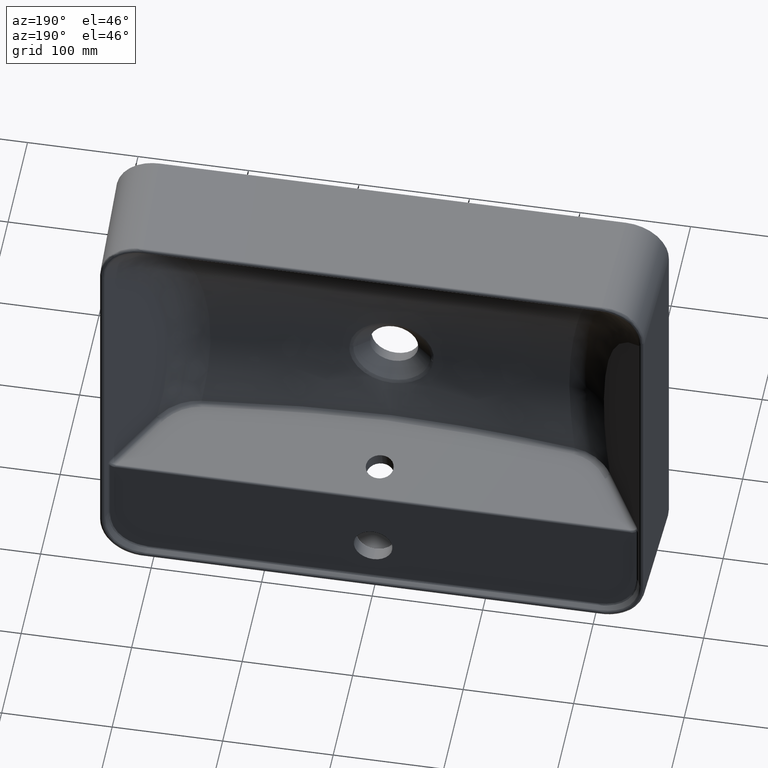
[diagram: clean part render]
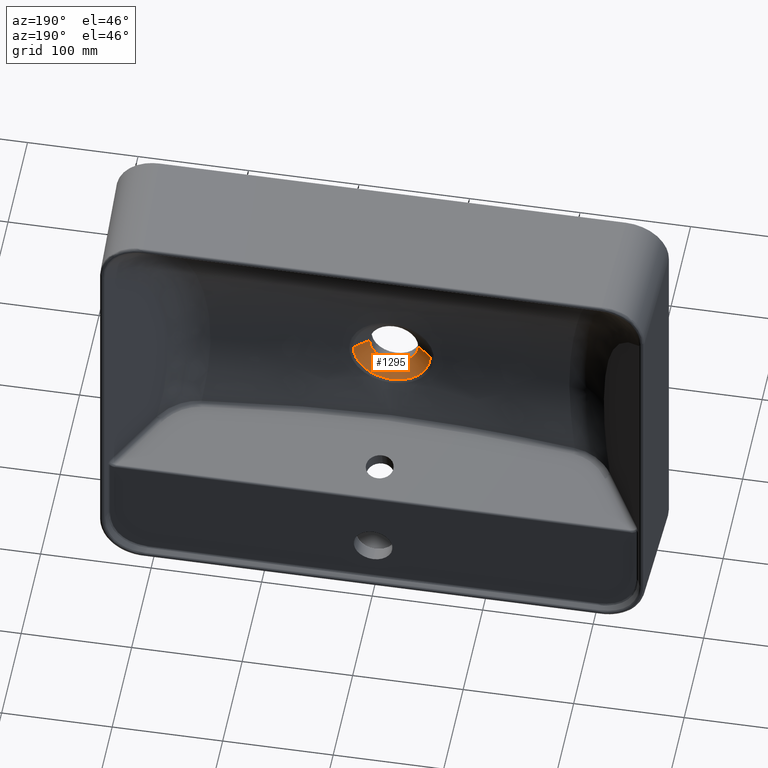
[diagram: same view with one face highlighted and labeled with its STEP entity id]
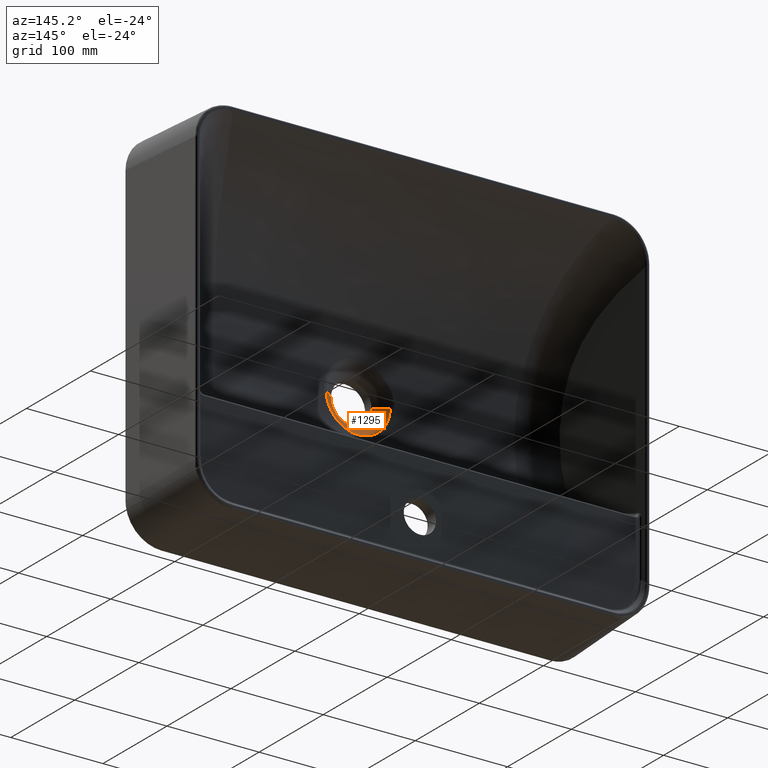
[diagram: same view with one face highlighted and labeled with its STEP entity id]
A machine part, auxiliary view. The second image highlights one B-rep face of the part: STEP entity #1295.
A second angle (auxiliary view) of the same face is appended — the face is thin or edge-on in the first view.
In plain terms, the highlighted face is a freeform B-spline surface patch.
Its self-contained STEP definition (entity closure, byte-faithful):
#25 = CARTESIAN_POINT ( 'NONE',  ( 6.902176000548052137, -24.01799999999590796, -3.396235541480227216 ) ) ;
#116 = CARTESIAN_POINT ( 'NONE',  ( 19.76989422506035510, -11.99911976763036670, -9.758690609449921283 ) ) ;
#195 = CARTESIAN_POINT ( 'NONE',  ( 4.464138481419634358E-12, -11.99912472058425195, -21.99999999999999289 ) ) ;
#515 = CARTESIAN_POINT ( 'NONE',  ( -2.377218207085641133, 0.01799999999997333941, -36.32145155329848052 ) ) ;
#594 = CARTESIAN_POINT ( 'NONE',  ( -32.64692363521497498, 0.01799999999997042160, -16.09588107788295019 ) ) ;
#677 = CARTESIAN_POINT ( 'NONE',  ( 7.676462213049108030, -24.01800000000002910, -1.366055538002189373E-07 ) ) ;
#751 = CARTESIAN_POINT ( 'NONE',  ( 35.15977277473031393, 0.01799999999998028524, -9.417504346386284197 ) ) ;
#814 = CARTESIAN_POINT ( 'NONE',  ( -25.76894647557275420, -1.208683061841676176, -23.50277273108337184 ) ) ;
#834 = CARTESIAN_POINT ( 'NONE',  ( 36.08731734594457663, 0.01799999999998028524, -4.754422983026239002 ) ) ;
#839 = CARTESIAN_POINT ( 'NONE',  ( -21.96496443914950802, -11.99886538341011111, -1.437745108754439949 ) ) ;
#897 = CARTESIAN_POINT ( 'NONE',  ( -29.75896235928912148, -1.229731616904314873, -18.24204202960477872 ) ) ;
#914 = CARTESIAN_POINT ( 'NONE',  ( 19.87104562789611961, -1.180123440103782784, -28.68809961085047888 ) ) ;
#977 = CARTESIAN_POINT ( 'NONE',  ( -0.3385456120957298642, -1.129358837170579610, -34.96981221442531051 ) ) ;
#996 = CARTESIAN_POINT ( 'NONE',  ( 33.97233222719383861, -1.253741862973624999, -7.650738087716235647 ) ) ;
#1073 = CARTESIAN_POINT ( 'NONE',  ( 4.677525633274214556, -24.01799999999591151, -6.106979889609305268 ) ) ;
#1094 = EDGE_CURVE ( 'NONE', #10970, #3465, #4756, .T. ) ;
#1141 = CARTESIAN_POINT ( 'NONE',  ( -0.7173110560618750631, -11.99912471677116876, -22.00000000000014566 ) ) ;
#1158 = CARTESIAN_POINT ( 'NONE',  ( 28.74353166807706117, -1.224267230263658579, -19.72090011215940919 ) ) ;
#1166 = CARTESIAN_POINT ( 'NONE',  ( 4.638735830244077540, -11.99912607289292943, -21.50844480437459438 ) ) ;
#1181 = VERTEX_POINT ( 'NONE', #7177 ) ;
#1220 = CARTESIAN_POINT ( 'NONE',  ( -19.73859672707698820, -11.99886462051512304, -9.742093119185524230 ) ) ;
#1234 = CARTESIAN_POINT ( 'NONE',  ( -7.282076572931354796, -24.01799999999591151, -2.479074441334836010 ) ) ;
#1295 = ADVANCED_FACE ( 'NONE', ( #13943 ), #10739, .T. ) ;
#1319 = CARTESIAN_POINT ( 'NONE',  ( 9.077489472824380456, -11.99912598943270581, -20.05274953368124713 ) ) ;
#1329 = EDGE_CURVE ( 'NONE', #8116, #10970, #7450, .T. ) ;
#1571 = CARTESIAN_POINT ( 'NONE',  ( -4.754423075501272855, 0.01799999999173406209, 36.08731732569965800 ) ) ;
#1733 = CARTESIAN_POINT ( 'NONE',  ( -0.4963643063179348780, -24.01800000000002910, 7.676462194212220425 ) ) ;
#1810 = CARTESIAN_POINT ( 'NONE',  ( 7.625796911343288187, -24.01800000000002555, 1.010777142707481424 ) ) ;
#1887 = CARTESIAN_POINT ( 'NONE',  ( -16.09588096562286808, 0.01799999999584904822, -32.64692365704929955 ) ) ;
#1892 = CARTESIAN_POINT ( 'NONE',  ( -22.00000000008291323, -11.99912472408364295, -0.7177602226933168517 ) ) ;
#1952 = CARTESIAN_POINT ( 'NONE',  ( -2.540803745624446996, -1.130446237004422150, -34.86457138928228261 ) ) ;
#1968 = CARTESIAN_POINT ( 'NONE',  ( -28.87947149523986567, 0.01799999999996639705, -22.15570212078812418 ) ) ;
#2043 = B_SPLINE_CURVE_WITH_KNOTS ( 'NONE', 1,
 ( #9511, #13140 ),
 .UNSPECIFIED., .F., .F.,
 ( 2, 2 ),
 ( 0.05312276944638082143, 0.4999635848650241798 ),
 .UNSPECIFIED. ) ;
#2049 = CARTESIAN_POINT ( 'NONE',  ( 11.70335447117046890, 0.01799999999997333941, -34.46636773270523690 ) ) ;
#2054 = CARTESIAN_POINT ( 'NONE',  ( -21.82244331986893471, -11.99886655447078709, -2.882315278028666050 ) ) ;
#2111 = CARTESIAN_POINT ( 'NONE',  ( 7.312219898592987377, -1.137129372618136847, -34.17572058844619676 ) ) ;
#2131 = CARTESIAN_POINT ( 'NONE',  ( -7.432125312429802122, -24.01799999999591151, 1.984429963635055305 ) ) ;
#2213 = CARTESIAN_POINT ( 'NONE',  ( 0.4963641532308845639, -24.01800000000002910, -7.676462207861279197 ) ) ;
#2288 = CARTESIAN_POINT ( 'NONE',  ( -0.4963639091779875612, -24.01800000000002910, -7.676462205767619729 ) ) ;
#2308 = EDGE_CURVE ( 'NONE', #3465, #4850, #11481, .T. ) ;
#2364 = CARTESIAN_POINT ( 'NONE',  ( -5.779060998788246195, -24.01799999999179391, 5.077095951414243302 ) ) ;
#2422 = EDGE_CURVE ( 'NONE', #14446, #1181, #8383, .T. ) ;
#2451 = CARTESIAN_POINT ( 'NONE',  ( 26.01257775909217429, -1.209940983770942724, -23.21051459442846365 ) ) ;
#2459 = CARTESIAN_POINT ( 'NONE',  ( 17.89556368240520356, -11.99912621183263539, -12.81662637896499568 ) ) ;
#2536 = CARTESIAN_POINT ( 'NONE',  ( 21.99999999548976604, -11.99912473538034163, -1.453920294662173651 ) ) ;
#2547 = CARTESIAN_POINT ( 'NONE',  ( -34.67129726651376842, -1.258048041902464664, -3.059596463839940217 ) ) ;
#2626 = CARTESIAN_POINT ( 'NONE',  ( -18.20253262354665935, 0.01799999999996639705, 31.52089492273735161 ) ) ;
#2698 = CARTESIAN_POINT ( 'NONE',  ( 7.753204033682934870, -11.99912345409519965, -20.60100498038563543 ) ) ;
#2784 = CARTESIAN_POINT ( 'NONE',  ( 36.08731730060915055, 0.01799999999998028177, 4.754423074994080345 ) ) ;
#2945 = CARTESIAN_POINT ( 'NONE',  ( 2.479074434664009452, -24.01800000000415025, 7.282076574234134014 ) ) ;
#3026 = CARTESIAN_POINT ( 'NONE',  ( -32.64692367555260688, 0.01799999999584502713, 16.09588099283110907 ) ) ;
#3103 = CARTESIAN_POINT ( 'NONE',  ( -35.15977277298687653, 0.01800000000408777043, 9.417504249986540898 ) ) ;
#3183 = CARTESIAN_POINT ( 'NONE',  ( -2.479074342321342161, -24.01800000000002910, 7.282076570865854137 ) ) ;
#3249 = CARTESIAN_POINT ( 'NONE',  ( 4.044023531538344152, -1.131780405320581551, -34.73379536686217506 ) ) ;
#3266 = CARTESIAN_POINT ( 'NONE',  ( 31.52089497756543324, 0.01800000000410165862, -18.20253252831581392 ) ) ;
#3271 = CARTESIAN_POINT ( 'NONE',  ( -9.739897327673507021, -11.99886483594560360, -19.73971644312476315 ) ) ;
#3344 = CARTESIAN_POINT ( 'NONE',  ( 7.676462215287011226, -24.01800000000415025, -0.4963615412216475509 ) ) ;
#3419 = CARTESIAN_POINT ( 'NONE',  ( 18.48643545820720746, -1.173965344629448682, -29.60795934241371441 ) ) ;
#3444 = ORIENTED_EDGE ( 'NONE', *, *, #2422, .F. ) ;
#3465 = VERTEX_POINT ( 'NONE', #5224 ) ;
#3484 = CARTESIAN_POINT ( 'NONE',  ( -32.61440830439329375, -1.245745619016632277, -12.23234643114741615 ) ) ;
#3502 = CARTESIAN_POINT ( 'NONE',  ( -5.077096140130652913, -24.01800000000827850, 5.779060808761236068 ) ) ;
#3568 = CARTESIAN_POINT ( 'NONE',  ( -21.71568414695320826, -11.99912808562398325, -3.597948957549455429 ) ) ;
#3582 = CARTESIAN_POINT ( 'NONE',  ( 23.75447735907199842, -1.198464099931358939, -25.62464196415902151 ) ) ;
#3663 = CARTESIAN_POINT ( 'NONE',  ( 7.676462213049108030, -24.01800000000002910, -1.366055538002189373E-07 ) ) ;
#3829 = CARTESIAN_POINT ( 'NONE',  ( -34.79974762094465746, -1.258861218431040152, -4.372572265271636421E-08 ) ) ;
#3909 = CARTESIAN_POINT ( 'NONE',  ( 7.077780348605588578, -11.99886642309088280, -20.84282368896092663 ) ) ;
#3993 = CARTESIAN_POINT ( 'NONE',  ( 20.84458744201863922, -11.99886518852059503, -7.072831119900112817 ) ) ;
#4233 = CARTESIAN_POINT ( 'NONE',  ( 4.754423029342873974, 0.01799999999997333941, -36.08731733128058750 ) ) ;
#4318 = CARTESIAN_POINT ( 'NONE',  ( 4.677525493186544203, -24.01800000000415025, 6.106979945658167708 ) ) ;
#4323 = CARTESIAN_POINT ( 'NONE',  ( -11.63026297487220795, -11.99912607798362174, -18.68824894018827720 ) ) ;
#4398 = CARTESIAN_POINT ( 'NONE',  ( 36.32145157601038932, 0.01799999999585891186, -2.377218280102861847 ) ) ;
#4461 = CARTESIAN_POINT ( 'NONE',  ( -16.23394231345058358, -1.164534341268895323, -30.91302420753029878 ) ) ;
#4480 = CARTESIAN_POINT ( 'NONE',  ( 27.36409185152621149, 0.01799999999998430633, -24.00219754453982546 ) ) ;
#4486 = CARTESIAN_POINT ( 'NONE',  ( -9.080707500437727120, -11.99912609740258240, -20.05143056899227716 ) ) ;
#4544 = CARTESIAN_POINT ( 'NONE',  ( -24.21616857208341145, -1.200850125683026848, -25.09425449913790729 ) ) ;
#4564 = CARTESIAN_POINT ( 'NONE',  ( 6.106979658831778401, -24.01799999999590796, 4.677525913091272969 ) ) ;
#4621 = CARTESIAN_POINT ( 'NONE',  ( -31.98764558472488773, -1.242164242015588282, -13.76602999316935261 ) ) ;
#4639 = CARTESIAN_POINT ( 'NONE',  ( 27.08559917862710265, -1.215499736373141015, -21.93829748016575110 ) ) ;
#4696 = CARTESIAN_POINT ( 'NONE',  ( -16.72068360186358049, -1.166508479032545953, -30.64974187560541807 ) ) ;
#4716 = CARTESIAN_POINT ( 'NONE',  ( -1.010777121536023282, -24.01800000000002555, -7.625796927760312371 ) ) ;
#4756 = B_SPLINE_CURVE_WITH_KNOTS ( 'NONE', 3,
 ( #10799, #2547, #5884, #4903, #6207, #11125 ),
 .UNSPECIFIED., .F., .F.,
 ( 4, 2, 4 ),
 ( 0.01298751018278587396, 0.01484073408210249446, 0.01669395798141911497 ),
 .UNSPECIFIED. ) ;
#4803 = CARTESIAN_POINT ( 'NONE',  ( -7.625797006333704608, -24.01800000000415380, 1.010776624565480786 ) ) ;
#4850 = VERTEX_POINT ( 'NONE', #8999 ) ;
#4882 = CARTESIAN_POINT ( 'NONE',  ( -5.779060808505543712, -24.01799999999591151, -5.077096155932063759 ) ) ;
#4890 = CARTESIAN_POINT ( 'NONE',  ( 16.54301444874217708, -11.99886670576200132, -14.52084541244793314 ) ) ;
#4903 = CARTESIAN_POINT ( 'NONE',  ( -34.78377208352865324, -1.258757281638698267, -1.221591647166394790 ) ) ;
#4963 = CARTESIAN_POINT ( 'NONE',  ( 6.106980040063034743, -24.01800000000415025, -4.677525403069398457 ) ) ;
#5067 = CARTESIAN_POINT ( 'NONE',  ( 4.754422878880236070, 0.01799999999585196603, 36.08731733528973251 ) ) ;
#5145 = CARTESIAN_POINT ( 'NONE',  ( -22.15570210348808189, 0.01799999999996639705, 28.87947151346682517 ) ) ;
#5220 = CARTESIAN_POINT ( 'NONE',  ( 2.377218143424980390, 0.01799999999997333941, 36.32145153736618681 ) ) ;
#5224 = CARTESIAN_POINT ( 'NONE',  ( -34.79974762094465746, -1.258861218431040152, -4.372572265271636421E-08 ) ) ;
#5323 = CARTESIAN_POINT ( 'NONE',  ( -32.98157497877745925, -1.247874335370031895, -11.19568131270514399 ) ) ;
#5454 = CARTESIAN_POINT ( 'NONE',  ( -36.08731728955162765, 0.01799999999996292760, -4.754423091150495218 ) ) ;
#5540 = CARTESIAN_POINT ( 'NONE',  ( 32.64692364616725939, 0.01800000000409818571, -16.09588106221808346 ) ) ;
#5608 = CARTESIAN_POINT ( 'NONE',  ( 15.60231334391052549, -1.161953987185203818, -31.25441087673310747 ) ) ;
#5624 = CARTESIAN_POINT ( 'NONE',  ( 7.676462210811204834, -24.01799999999590796, 0.4963612680105399244 ) ) ;
#5687 = CARTESIAN_POINT ( 'NONE',  ( -6.947091158657462628, -1.135810531402799972, -34.32082897917143072 ) ) ;
#5690 = CARTESIAN_POINT ( 'NONE',  ( 22.00000000000000000, -11.99912472581574541, -6.824667458764366312E-08 ) ) ;
#5703 = CARTESIAN_POINT ( 'NONE',  ( -36.08731733700267341, 0.01799999999584502366, 4.754422910068118568 ) ) ;
#5768 = CARTESIAN_POINT ( 'NONE',  ( -26.49686459209398492, -1.212436201062164542, -22.67141378628070925 ) ) ;
#5786 = CARTESIAN_POINT ( 'NONE',  ( 28.87947155947104250, 0.01799999999585891186, -22.15570201143431461 ) ) ;
#5867 = CARTESIAN_POINT ( 'NONE',  ( -3.852102470581216576, -24.01800000000003266, -6.658510018269628183 ) ) ;
#5884 = CARTESIAN_POINT ( 'NONE',  ( -34.71954639764720696, -1.258350671028036993, -2.446245462201866783 ) ) ;
#5923 = CARTESIAN_POINT ( 'NONE',  ( -12.20367849933085758, -1.149832151219424725, -32.74682074937270215 ) ) ;
#5942 = CARTESIAN_POINT ( 'NONE',  ( 33.09912991518508818, -1.248519535046103135, -10.84138609061559144 ) ) ;
#6022 = CARTESIAN_POINT ( 'NONE',  ( 5.077096116274980808, -24.01799999999590440, -5.779060857913305149 ) ) ;
#6109 = CARTESIAN_POINT ( 'NONE',  ( -6.902176073356669939, -24.01800000000415380, -3.396235376227550784 ) ) ;
#6116 = CARTESIAN_POINT ( 'NONE',  ( 2.863215270756345188, -11.99911926012184793, -21.86090314701574400 ) ) ;
#6188 = CARTESIAN_POINT ( 'NONE',  ( 3.852102331007629221, -24.01800000000415380, -6.658510104983277778 ) ) ;
#6207 = CARTESIAN_POINT ( 'NONE',  ( -34.79974761861765842, -1.258861218532614012, -0.6102888984967734798 ) ) ;
#6283 = CARTESIAN_POINT ( 'NONE',  ( 9.417504265951244236, 0.01800000000409471279, 35.15977279112827603 ) ) ;
#6356 = CARTESIAN_POINT ( 'NONE',  ( 17.46368770093785727, -11.99886524325502535, -13.39947351307559487 ) ) ;
#6435 = CARTESIAN_POINT ( 'NONE',  ( 6.044449572632275114, -11.99886576514744441, -21.15642214227064954 ) ) ;
#6445 = CARTESIAN_POINT ( 'NONE',  ( 24.00219748554036414, 0.01799999999997681233, 27.36409190781639111 ) ) ;
#6549 = CARTESIAN_POINT ( 'NONE',  ( -34.37329166931944258, -1.256202982001949353, -5.887824437222342944 ) ) ;
#6680 = CARTESIAN_POINT ( 'NONE',  ( 34.46636771701324164, 0.01799999999585543894, -11.70335447360829306 ) ) ;
#6742 = EDGE_CURVE ( 'NONE', #8116, #14446, #2043, .T. ) ;
#6760 = CARTESIAN_POINT ( 'NONE',  ( -27.36409180016189779, 0.01800000000821316837, -24.00219759586752133 ) ) ;
#6841 = CARTESIAN_POINT ( 'NONE',  ( -4.754422988884425827, 0.01799999999997680886, -36.08731733038916900 ) ) ;
#6904 = CARTESIAN_POINT ( 'NONE',  ( -3.644223846819334423, -1.131446391280959807, -34.76534129946816876 ) ) ;
#6920 = CARTESIAN_POINT ( 'NONE',  ( -36.32145157385121337, 0.01800000000408777043, 2.377218214009109598 ) ) ;
#6978 = CARTESIAN_POINT ( 'NONE',  ( -24.61204138210511871, -1.202833784379477411, -24.70285643074873150 ) ) ;
#6996 = CARTESIAN_POINT ( 'NONE',  ( 22.15570208393180707, 0.01800000000409471626, -28.87947152586863453 ) ) ;
#7001 = CARTESIAN_POINT ( 'NONE',  ( -17.46518558335575833, -11.99886682626737766, -13.39713968541036593 ) ) ;
#7057 = CARTESIAN_POINT ( 'NONE',  ( -1.989752212185485813, -1.130074118369045477, -34.90078927921678797 ) ) ;
#7077 = CARTESIAN_POINT ( 'NONE',  ( 31.51260056752650129, -1.239394620857739993, -14.98314262036965516 ) ) ;
#7138 = CARTESIAN_POINT ( 'NONE',  ( 12.61488803936740588, -1.150869278748960722, -32.64495809031083695 ) ) ;
#7158 = CARTESIAN_POINT ( 'NONE',  ( 1.984429996253046058, -24.01800000000002910, -7.432125330520213957 ) ) ;
#7177 = CARTESIAN_POINT ( 'NONE',  ( 4.464138481419634358E-12, -11.99912472058425195, -21.99999999999999289 ) ) ;
#7237 = CARTESIAN_POINT ( 'NONE',  ( -1.984429968377550146, -24.01800000000002555, -7.432125337683116229 ) ) ;
#7300 = CARTESIAN_POINT ( 'NONE',  ( -3.949521592301983741, -11.99912634210857831, -21.64556660106333652 ) ) ;
#7315 = CARTESIAN_POINT ( 'NONE',  ( 3.396235373018243298, -24.01800000000002910, -6.902176071264161550 ) ) ;
#7382 = CARTESIAN_POINT ( 'NONE',  ( -3.594431952266634145, -11.99904583238606648, -21.70738992245525623 ) ) ;
#7395 = CARTESIAN_POINT ( 'NONE',  ( -6.658510156599070307, -24.01800000000003266, 3.852102267579266659 ) ) ;
#7401 = CARTESIAN_POINT ( 'NONE',  ( 10.67941892805080073, -11.99886517329993829, -19.23745587158044046 ) ) ;
#7450 = B_SPLINE_CURVE_WITH_KNOTS ( 'NONE', 3,
 ( #8274, #14659, #9651, #996, #8435, #5942, #13202, #7077, #13360, #1158, #8596, #4639, #13524, #2451, #10940, #3582, #14499, #914, #9574, #3419, #8514, #13444, #5608, #7138, #9557, #9319, #2111, #15771, #15459, #3249, #13026, #14245, #977, #7057, #1952, #6904, #8177, #5687, #13106, #5923, #15534, #11889, #14561, #4461, #4696, #14482, #11969, #10840, #9400, #4544, #6978, #814, #5768, #10683, #897, #10764, #9480, #15694, #4621, #3484, #5323, #10094, #6549, #11460 ),
 .UNSPECIFIED., .F., .F.,
 ( 4, 2, 2, 2, 2, 2, 2, 2, 2, 2, 2, 2, 2, 2, 2, 2, 2, 2, 2, 2, 2, 2, 2, 2, 2, 2, 2, 2, 2, 2, 2, 4 ),
 ( 0.1272459322955794003, 0.1339235697805204739, 0.1372623885229909968, 0.1406012072654615475, 0.1472788447504026210, 0.1506176634928731439, 0.1522870728641084193, 0.1539564822353436946, 0.1606341197202847404, 0.1623035290915200157, 0.1639729384627552633, 0.1673117572052257862, 0.1739893946901668320, 0.1756588040614020796, 0.1773282134326373272, 0.1806670321751078501, 0.1840058509175783730, 0.1856752602888136205, 0.1873446696600488681, 0.1940223071449899139, 0.1973611258874604091, 0.1990305352586956844, 0.2006999446299309042, 0.2073775821148719500, 0.2090469914861072254, 0.2107164008573425007, 0.2140552195998130514, 0.2207328570847540972, 0.2224022664559893725, 0.2240716758272246478, 0.2274104945696951985, 0.2340881320546362721 ),
 .UNSPECIFIED. ) ;
#7479 = CARTESIAN_POINT ( 'NONE',  ( 20.59862134025631519, -11.99912718030379644, -7.759960624964350018 ) ) ;
#7490 = CARTESIAN_POINT ( 'NONE',  ( 16.09588096804450785, 0.01799999999996931485, 32.64692368312633164 ) ) ;
#7643 = CARTESIAN_POINT ( 'NONE',  ( 22.15570192458887533, 0.01799999999998083688, 28.87947158389330937 ) ) ;
#7723 = CARTESIAN_POINT ( 'NONE',  ( -27.36409192846791427, 0.01800000000408374934, 24.00219745924058756 ) ) ;
#7794 = CARTESIAN_POINT ( 'NONE',  ( 36.32145156464365243, 0.01799999999998028524, 1.022480711210249638E-10 ) ) ;
#7875 = CARTESIAN_POINT ( 'NONE',  ( 1.984429968504492159, -24.01799999999590796, 7.432125321215425018 ) ) ;
#7956 = CARTESIAN_POINT ( 'NONE',  ( -31.52089491802205501, 0.01799999999996639705, -18.20253260938764583 ) ) ;
#8032 = CARTESIAN_POINT ( 'NONE',  ( 36.32145156464365243, 0.01799999999998028524, 1.022480711210249638E-10 ) ) ;
#8111 = CARTESIAN_POINT ( 'NONE',  ( -3.852102491535129847, -24.01800000000003266, 6.658510011875900858 ) ) ;
#8116 = VERTEX_POINT ( 'NONE', #9334 ) ;
#8177 = CARTESIAN_POINT ( 'NONE',  ( -4.198095398854355231, -1.132076755765846654, -34.70209288565067141 ) ) ;
#8195 = CARTESIAN_POINT ( 'NONE',  ( 2.377218327721226654, 0.01799999999997333941, -36.32145156351950277 ) ) ;
#8202 = CARTESIAN_POINT ( 'NONE',  ( -17.89195597651429992, -11.99912345790258072, -12.82151601276071240 ) ) ;
#8274 = CARTESIAN_POINT ( 'NONE',  ( 34.79975039952486071, -1.258858886413233513, -7.602937045054908434E-09 ) ) ;
#8354 = CARTESIAN_POINT ( 'NONE',  ( -2.479074093528640610, -24.01799999999179036, -7.282076697523116593 ) ) ;
#8383 = B_SPLINE_CURVE_WITH_KNOTS ( 'NONE', 3,
 ( #14830, #2536, #12236, #15062, #10063, #3993, #7479, #116, #12470, #2459, #6356, #4890, #9821, #13774, #14747, #12391, #8688, #8604, #7401, #11352, #1319, #2698, #3909, #6435, #8928, #12317, #1166, #6116, #11033, #195 ),
 .UNSPECIFIED., .F., .F.,
 ( 4, 2, 2, 2, 2, 2, 2, 2, 2, 2, 2, 2, 2, 2, 4 ),
 ( 1.413572050719166067E-19, 0.004299851908196043043, 0.006449777862294067167, 0.008599703816392091291, 0.01289955572458813433, 0.01504948167868615412, 0.01719940763278417217, 0.02149925954098021869, 0.02257422251802923205, 0.02364918549507824888, 0.02579911144917626520, 0.02794903740327428152, 0.02902400038032329141, 0.03009896335737229783, 0.03439881526556831659 ),
 .UNSPECIFIED. ) ;
#8435 = CARTESIAN_POINT ( 'NONE',  ( 33.71566791314567979, -1.252180368364655294, -8.720141150036299749 ) ) ;
#8499 = CARTESIAN_POINT ( 'NONE',  ( -13.41778454890680194, -11.99912200801158413, -17.49336214281413504 ) ) ;
#8514 = CARTESIAN_POINT ( 'NONE',  ( 18.01235378146716570, -1.171913990207318790, -29.90152414735901587 ) ) ;
#8581 = CARTESIAN_POINT ( 'NONE',  ( 4.464138481419634358E-12, -11.99912472058425195, -21.99999999999999289 ) ) ;
#8596 = CARTESIAN_POINT ( 'NONE',  ( 28.10834188516769672, -1.220872042768814225, -20.62336365546779149 ) ) ;
#8604 = CARTESIAN_POINT ( 'NONE',  ( 10.99373128430685220, -11.99891295897401733, -19.05962186206129161 ) ) ;
#8688 = CARTESIAN_POINT ( 'NONE',  ( 11.61547568311872425, -11.99904289133732149, -18.68721589031360608 ) ) ;
#8781 = CARTESIAN_POINT ( 'NONE',  ( -11.70335455649809120, 0.01799999999996986649, 34.46636764685394638 ) ) ;
#8928 = CARTESIAN_POINT ( 'NONE',  ( 5.696634138511662115, -11.99891409338401260, -21.25275217480442080 ) ) ;
#8937 = CARTESIAN_POINT ( 'NONE',  ( 35.15977275304571492, 0.01799999999998028177, 9.417504480454615745 ) ) ;
#8999 = CARTESIAN_POINT ( 'NONE',  ( -22.00000000000000000, -11.99912472632792593, 2.541558001382948628E-09 ) ) ;
#9024 = ORIENTED_EDGE ( 'NONE', *, *, #1094, .T. ) ;
#9172 = CARTESIAN_POINT ( 'NONE',  ( 16.09588108598898515, 0.01799999999997333941, -32.64692362831191730 ) ) ;
#9253 = CARTESIAN_POINT ( 'NONE',  ( -28.87947159068615122, 0.01799999999996639705, 22.15570198794720724 ) ) ;
#9258 = CARTESIAN_POINT ( 'NONE',  ( -16.55399138407068449, -11.99886513805905608, -14.50797809715635189 ) ) ;
#9319 = CARTESIAN_POINT ( 'NONE',  ( 7.856330464019964488, -1.138267311036479823, -34.05331264241161904 ) ) ;
#9334 = CARTESIAN_POINT ( 'NONE',  ( 34.79975039952486071, -1.258858886413233513, -7.602937045054908434E-09 ) ) ;
#9336 = CARTESIAN_POINT ( 'NONE',  ( 1.010776943035361031, -24.01800000000415025, 7.625796946632295459 ) ) ;
#9400 = CARTESIAN_POINT ( 'NONE',  ( -23.41068667793448910, -1.196861997544732326, -25.85363261511835731 ) ) ;
#9418 = CARTESIAN_POINT ( 'NONE',  ( -35.15977274949931086, 0.01799999999996292760, -9.417504455176359812 ) ) ;
#9424 = CARTESIAN_POINT ( 'NONE',  ( -11.01405288481488043, -11.99886711271619788, -19.05813853079812148 ) ) ;
#9480 = CARTESIAN_POINT ( 'NONE',  ( -31.29695175118270356, -1.238263551631445525, -15.28178715473555016 ) ) ;
#9497 = CARTESIAN_POINT ( 'NONE',  ( 3.852101913952613366, -24.01799999999590796, 6.658510351887919398 ) ) ;
#9511 = CARTESIAN_POINT ( 'NONE',  ( 34.79975039952486071, -1.258858886413233513, -7.602937045054908434E-09 ) ) ;
#9557 = CARTESIAN_POINT ( 'NONE',  ( 10.54475461786854495, -1.144415076259005959, -33.38024836438523124 ) ) ;
#9574 = CARTESIAN_POINT ( 'NONE',  ( 19.41545903901064563, -1.178069028122194162, -29.00140635186026117 ) ) ;
#9651 = CARTESIAN_POINT ( 'NONE',  ( 34.58964020359082525, -1.257511493702569538, -4.416549268944454099 ) ) ;
#9733 = CARTESIAN_POINT ( 'NONE',  ( -7.676462211870816787, -24.01800000000415380, -0.4963637730134041193 ) ) ;
#9756 = CARTESIAN_POINT ( 'NONE',  ( -34.60655924417644513, -1.257647225507813493, -3.673993936369516877 ) ) ;
#9814 = CARTESIAN_POINT ( 'NONE',  ( 7.282076556023842073, -24.01800000000415025, -2.479074460346130770 ) ) ;
#9821 = CARTESIAN_POINT ( 'NONE',  ( 16.05858748738258157, -11.99912718918906940, -15.05446961712178044 ) ) ;
#10063 = CARTESIAN_POINT ( 'NONE',  ( 21.26364292738832873, -11.99886676512863204, -5.690277245892065849 ) ) ;
#10073 = CARTESIAN_POINT ( 'NONE',  ( -24.00219760810762182, 0.01799999999584905169, 27.36409177339405829 ) ) ;
#10094 = CARTESIAN_POINT ( 'NONE',  ( -33.93473828262727210, -1.253500826445441030, -8.044092040971976942 ) ) ;
#10148 = CARTESIAN_POINT ( 'NONE',  ( 34.46636769703391678, 0.01799999999997681233, 11.70335454902047978 ) ) ;
#10300 = CARTESIAN_POINT ( 'NONE',  ( 36.32145155327690844, 0.01800000000410165862, 2.377218280307357823 ) ) ;
#10384 = CARTESIAN_POINT ( 'NONE',  ( -31.52089498747352181, 0.01799999999996639705, 18.20253251444679776 ) ) ;
#10419 = ORIENTED_EDGE ( 'NONE', *, *, #1329, .T. ) ;
#10466 = CARTESIAN_POINT ( 'NONE',  ( -22.15570203654210601, 0.01799999999996639705, -28.87947157041915958 ) ) ;
#10471 = CARTESIAN_POINT ( 'NONE',  ( -7.083584778521860414, -11.99912192890861640, -20.87820138259009894 ) ) ;
#10547 = CARTESIAN_POINT ( 'NONE',  ( 5.779060643019575672, -24.01800000000002910, 5.077096328414093307 ) ) ;
#10624 = CARTESIAN_POINT ( 'NONE',  ( -18.20253251910149217, 0.01799999999996639705, -31.52089497192253020 ) ) ;
#10629 = CARTESIAN_POINT ( 'NONE',  ( -1.436465697537239183, -11.99886578808596838, -21.96500705558200295 ) ) ;
#10683 = CARTESIAN_POINT ( 'NONE',  ( -28.55458724958359795, -1.223214446752123985, -20.08633301946711569 ) ) ;
#10700 = CARTESIAN_POINT ( 'NONE',  ( 7.432125283169705554, -24.01800000000002555, 1.984430182323113856 ) ) ;
#10739 = B_SPLINE_SURFACE_WITH_KNOTS ( 'NONE', 1, 3, ( 
 ( #7794, #10300, #2784, #8937, #10148, #15232, #12714, #12640, #11361, #6445, #7643, #12563, #7490, #12403, #6283, #5067, #5220, #15073, #1571, #11286, #8781, #13704, #2626, #5145, #10073, #7723, #9253, #10384, #3026, #11908, #3103, #5703, #6920, #12959, #5454, #9418, #15394, #594, #7956, #1968, #6760, #14183, #10466, #10624, #1887, #15311, #11753, #6841, #515, #8195, #4233, #15552, #2049, #9172, #11828, #6996, #14344, #4480, #5786, #3266, #5540, #6680, #751, #834, #4398, #8032 ),
 ( #677, #5624, #1810, #10700, #11672, #15635, #13123, #4564, #10547, #15475, #4318, #9497, #14103, #2945, #7875, #9336, #12798, #1733, #11594, #14261, #3183, #12878, #8111, #13043, #3502, #2364, #14740, #7395, #15868, #15788, #2131, #4803, #11026, #9733, #10859, #10782, #1234, #6109, #11987, #15948, #4882, #14580, #13282, #5867, #12227, #8354, #7237, #4716, #2288, #2213, #12310, #7158, #11104, #7315, #6188, #1073, #6022, #12068, #4963, #15711, #25, #9814, #12143, #14422, #3344, #3663 ) ),
 .UNSPECIFIED., .F., .T., .F.,
 ( 2, 2 ),
 ( 4, 2, 2, 2, 2, 2, 2, 2, 2, 2, 2, 2, 2, 2, 2, 2, 2, 2, 2, 2, 2, 2, 2, 2, 2, 2, 2, 2, 2, 2, 2, 2, 4 ),
 ( 0.000000000000000000, 1.000000000000000000 ),
 ( 0.000000000000000000, 0.03125000000000000000, 0.06250000000000000000, 0.09375000000000000000, 0.1250000000000000000, 0.1562500000000000000, 0.1875000000000000000, 0.2187500000000000000, 0.2500000000000000000, 0.2812500000000000000, 0.3125000000000000000, 0.3437500000000000000, 0.3750000000000000000, 0.4062500000000000000, 0.4375000000000000000, 0.4687500000000000000, 0.5000000000000000000, 0.5312500000000000000, 0.5625000000000000000, 0.5937500000000000000, 0.6250000000000000000, 0.6562500000000000000, 0.6875000000000000000, 0.7187500000000000000, 0.7500000000000000000, 0.7812500000000000000, 0.8125000000000000000, 0.8437500000000000000, 0.8750000000000000000, 0.9062500000000000000, 0.9375000000000000000, 0.9687500000000000000, 1.000000000000000000 ),
 .UNSPECIFIED. ) ;
#10764 = CARTESIAN_POINT ( 'NONE',  ( -31.04970813143766151, -1.236882104330278453, -15.78163211040281233 ) ) ;
#10782 = CARTESIAN_POINT ( 'NONE',  ( -7.432125250848871545, -24.01800000000003621, -1.984430303191731859 ) ) ;
#10799 = CARTESIAN_POINT ( 'NONE',  ( -34.60655924417644513, -1.257647225507813493, -3.673993936369516877 ) ) ;
#10840 = CARTESIAN_POINT ( 'NONE',  ( -23.00018486837977250, -1.194852858016610897, -26.22256665163266831 ) ) ;
#10859 = CARTESIAN_POINT ( 'NONE',  ( -7.625796930721191025, -24.01800000000003621, -1.010777004366600451 ) ) ;
#10940 = CARTESIAN_POINT ( 'NONE',  ( 25.64346768677817678, -1.208050495402555935, -23.62100567861304512 ) ) ;
#10970 = VERTEX_POINT ( 'NONE', #9756 ) ;
#11010 = CARTESIAN_POINT ( 'NONE',  ( -22.00000000000000000, -11.99912472632792593, 2.541558001382948628E-09 ) ) ;
#11026 = CARTESIAN_POINT ( 'NONE',  ( -7.676462215448165871, -24.01799999999591151, 0.4963638816140408805 ) ) ;
#11033 = CARTESIAN_POINT ( 'NONE',  ( 1.435271771960203724, -11.99912472821385556, -21.99999999999969802 ) ) ;
#11104 = CARTESIAN_POINT ( 'NONE',  ( 2.479074417470799929, -24.01800000000002910, -7.282076579519606518 ) ) ;
#11125 = CARTESIAN_POINT ( 'NONE',  ( -34.79974762094465746, -1.258861218431040152, -4.372572265271636421E-08 ) ) ;
#11286 = CARTESIAN_POINT ( 'NONE',  ( -9.417504442608368720, 0.01800000000821955562, 35.15977274750752457 ) ) ;
#11352 = CARTESIAN_POINT ( 'NONE',  ( 9.726351322082974704, -11.99886761937927027, -19.74631302716213099 ) ) ;
#11361 = CARTESIAN_POINT ( 'NONE',  ( 27.36409180119770923, 0.01799999999997681233, 24.00219761385393014 ) ) ;
#11460 = CARTESIAN_POINT ( 'NONE',  ( -34.60655924417644513, -1.257647225507813493, -3.673993936369516877 ) ) ;
#11481 = B_SPLINE_CURVE_WITH_KNOTS ( 'NONE', 1,
 ( #3829, #13616 ),
 .UNSPECIFIED., .F., .F.,
 ( 2, 2 ),
 ( 0.05312286646825626485, 0.4999635848863328014 ),
 .UNSPECIFIED. ) ;
#11594 = CARTESIAN_POINT ( 'NONE',  ( -1.010777111783681459, -24.01800000000826785, 7.625796927560072547 ) ) ;
#11672 = CARTESIAN_POINT ( 'NONE',  ( 7.282076572724854202, -24.01800000000002910, 2.479074400341525930 ) ) ;
#11753 = CARTESIAN_POINT ( 'NONE',  ( -9.417504344668371274, 0.01799999999997680886, -35.15977279156628299 ) ) ;
#11778 = ORIENTED_EDGE ( 'NONE', *, *, #2308, .T. ) ;
#11828 = CARTESIAN_POINT ( 'NONE',  ( 18.20253260124925987, 0.01799999999585196950, -31.52089491464524329 ) ) ;
#11833 = CARTESIAN_POINT ( 'NONE',  ( -14.52858403196478321, -11.99912379304546128, -16.58397906587480009 ) ) ;
#11889 = CARTESIAN_POINT ( 'NONE',  ( -14.74252157387277151, -1.158750273531363284, -31.65912382690271798 ) ) ;
#11890 = EDGE_CURVE ( 'NONE', #1181, #4850, #15689, .T. ) ;
#11908 = CARTESIAN_POINT ( 'NONE',  ( -34.46636775552843091, 0.01800000000408777390, 11.70335436897397408 ) ) ;
#11913 = CARTESIAN_POINT ( 'NONE',  ( -5.712550258022824679, -11.99911814463214021, -21.29401695724935450 ) ) ;
#11969 = CARTESIAN_POINT ( 'NONE',  ( -20.90952910650505459, -1.184758961948580103, -28.01437318999963821 ) ) ;
#11987 = CARTESIAN_POINT ( 'NONE',  ( -6.658510084362335490, -24.01800000000003266, -3.852102366299191338 ) ) ;
#12068 = CARTESIAN_POINT ( 'NONE',  ( 5.779060719757279863, -24.01800000000414670, -5.077096249864530897 ) ) ;
#12143 = CARTESIAN_POINT ( 'NONE',  ( 7.432125352951011621, -24.01800000000002910, -1.984429870136600993 ) ) ;
#12211 = CARTESIAN_POINT ( 'NONE',  ( -20.05062673323831390, -11.99912576280879151, -9.082552698816064307 ) ) ;
#12227 = CARTESIAN_POINT ( 'NONE',  ( -3.396235408019322222, -24.01800000000827495, -6.902176038911319367 ) ) ;
#12236 = CARTESIAN_POINT ( 'NONE',  ( 21.85728899892549038, -11.99912334079563259, -2.883536429077991237 ) ) ;
#12295 = EDGE_LOOP ( 'NONE', ( #9024, #11778, #15599, #3444, #12488, #10419 ) ) ;
#12297 = CARTESIAN_POINT ( 'NONE',  ( -18.68829482024235844, -11.99912597717009000, -11.63017619138713243 ) ) ;
#12310 = CARTESIAN_POINT ( 'NONE',  ( 1.010776954284298368, -24.01800000000002910, -7.625796963062546396 ) ) ;
#12317 = CARTESIAN_POINT ( 'NONE',  ( 4.994138446461782621, -11.99904420625473911, -21.42871196990810034 ) ) ;
#12391 = CARTESIAN_POINT ( 'NONE',  ( 11.92311931773356726, -11.99912498100434277, -18.49243373137698399 ) ) ;
#12403 = CARTESIAN_POINT ( 'NONE',  ( 11.70335439333736183, 0.01799999999997736397, 34.46636776410279879 ) ) ;
#12470 = CARTESIAN_POINT ( 'NONE',  ( 19.09371862834614220, -11.99912172110051678, -11.02262917536257802 ) ) ;
#12488 = ORIENTED_EDGE ( 'NONE', *, *, #6742, .F. ) ;
#12563 = CARTESIAN_POINT ( 'NONE',  ( 18.20253243322533265, 0.01799999999997278777, 31.52089500604276395 ) ) ;
#12640 = CARTESIAN_POINT ( 'NONE',  ( 28.87947144820902778, 0.01800000000409818571, 22.15570214529929061 ) ) ;
#12714 = CARTESIAN_POINT ( 'NONE',  ( 31.52089482986802338, 0.01799999999585543894, 18.20253264618924760 ) ) ;
#12798 = CARTESIAN_POINT ( 'NONE',  ( 0.4963639223727842609, -24.01800000000002910, 7.676462191294285198 ) ) ;
#12878 = CARTESIAN_POINT ( 'NONE',  ( -3.396235877786746293, -24.01800000000002910, 6.902175828127805168 ) ) ;
#12959 = CARTESIAN_POINT ( 'NONE',  ( -36.32145155665685365, 0.01799999999584502366, -2.377218312428436953 ) ) ;
#13026 = CARTESIAN_POINT ( 'NONE',  ( 2.950939955560649697, -1.130653761059389417, -34.84485483855565491 ) ) ;
#13043 = CARTESIAN_POINT ( 'NONE',  ( -4.677525328513865155, -24.01800000000003266, 6.106980102746008221 ) ) ;
#13106 = CARTESIAN_POINT ( 'NONE',  ( -9.085070841853108092, -1.140627156782900053, -33.81003854985146972 ) ) ;
#13123 = CARTESIAN_POINT ( 'NONE',  ( 6.658510072597326968, -24.01800000000415025, 3.852102308246156070 ) ) ;
#13128 = CARTESIAN_POINT ( 'NONE',  ( -21.29416173176026206, -11.99911788093446496, -5.711687563855559091 ) ) ;
#13140 = CARTESIAN_POINT ( 'NONE',  ( 22.00000000000000000, -11.99912472581574541, -6.824667458764366312E-08 ) ) ;
#13202 = CARTESIAN_POINT ( 'NONE',  ( 32.73692748669460428, -1.246408834811002286, -11.89829615888714187 ) ) ;
#13282 = CARTESIAN_POINT ( 'NONE',  ( -4.677525451414529023, -24.01800000000003266, -6.106980019851254937 ) ) ;
#13360 = CARTESIAN_POINT ( 'NONE',  ( 30.51277443593482985, -1.233816836412111817, -16.93797504185242886 ) ) ;
#13444 = CARTESIAN_POINT ( 'NONE',  ( 16.57842589376078379, -1.165866410056576097, -30.74279670039110357 ) ) ;
#13524 = CARTESIAN_POINT ( 'NONE',  ( 26.73319563150779743, -1.213663223064790575, -22.36975044102735666 ) ) ;
#13616 = CARTESIAN_POINT ( 'NONE',  ( -22.00000000000000000, -11.99912472632792593, 2.541558001382948628E-09 ) ) ;
#13704 = CARTESIAN_POINT ( 'NONE',  ( -16.09588115100553551, 0.01799999999996986649, 32.64692357805254375 ) ) ;
#13774 = CARTESIAN_POINT ( 'NONE',  ( 14.53528787734841998, -11.99911975710075396, -16.57668713867942856 ) ) ;
#13943 = FACE_OUTER_BOUND ( 'NONE', #12295, .T. ) ;
#14103 = CARTESIAN_POINT ( 'NONE',  ( 3.396235229830508739, -24.01799999999590796, 6.902176133856515960 ) ) ;
#14183 = CARTESIAN_POINT ( 'NONE',  ( -24.00219751343847108, 0.01799999999171962572, -27.36409189138598919 ) ) ;
#14245 = CARTESIAN_POINT ( 'NONE',  ( 0.7596587436184918385, -1.129435488124265863, -34.96293155162454269 ) ) ;
#14261 = CARTESIAN_POINT ( 'NONE',  ( -1.984429732608037789, -24.01799999999178326, 7.432125374683044683 ) ) ;
#14344 = CARTESIAN_POINT ( 'NONE',  ( 24.00219755077642603, 0.01799999999997625721, -27.36409186708340613 ) ) ;
#14350 = CARTESIAN_POINT ( 'NONE',  ( -2.879201386274284236, -11.99891557309574885, -21.81377816157173299 ) ) ;
#14422 = CARTESIAN_POINT ( 'NONE',  ( 7.625796982415512737, -24.01800000000002910, -1.010776857671751516 ) ) ;
#14446 = VERTEX_POINT ( 'NONE', #5690 ) ;
#14482 = CARTESIAN_POINT ( 'NONE',  ( -19.11588782888676619, -1.176485100578961607, -29.27997488549661398 ) ) ;
#14499 = CARTESIAN_POINT ( 'NONE',  ( 22.10528739480703209, -1.190362890767039605, -27.07246500511402942 ) ) ;
#14561 = CARTESIAN_POINT ( 'NONE',  ( -15.24475232779942147, -1.160654515788841490, -31.41782212588120515 ) ) ;
#14580 = CARTESIAN_POINT ( 'NONE',  ( -5.077096017126104144, -24.01800000000415380, -5.779060949174369632 ) ) ;
#14644 = CARTESIAN_POINT ( 'NONE',  ( -20.87851795543226174, -11.99912265108707565, -7.083012895257329689 ) ) ;
#14659 = CARTESIAN_POINT ( 'NONE',  ( 34.79975041112508194, -1.258858885585469656, -2.226150006641178347 ) ) ;
#14724 = CARTESIAN_POINT ( 'NONE',  ( -19.05786507480920022, -11.99886735467064369, -11.01446130718267646 ) ) ;
#14740 = CARTESIAN_POINT ( 'NONE',  ( -6.106980054378153611, -24.01800000000003266, 4.677525396074491582 ) ) ;
#14747 = CARTESIAN_POINT ( 'NONE',  ( 13.42706000518740872, -11.99912367326136931, -17.48737066587170474 ) ) ;
#14830 = CARTESIAN_POINT ( 'NONE',  ( 22.00000000000000000, -11.99912472581574541, -6.824667458764366312E-08 ) ) ;
#15062 = CARTESIAN_POINT ( 'NONE',  ( 21.43790952288101082, -11.99912541607064576, -4.992995240220029274 ) ) ;
#15073 = CARTESIAN_POINT ( 'NONE',  ( -2.377218359326798147, 0.01799999999997333941, 36.32145155132940317 ) ) ;
#15232 = CARTESIAN_POINT ( 'NONE',  ( 32.64692357785739318, 0.01799999999997681233, 16.09588113576751667 ) ) ;
#15311 = CARTESIAN_POINT ( 'NONE',  ( -11.70335438723860833, 0.01800000000408374587, -34.46636775455820612 ) ) ;
#15394 = CARTESIAN_POINT ( 'NONE',  ( -34.46636772274230509, 0.01799999999996237249, -11.70335450288335011 ) ) ;
#15399 = CARTESIAN_POINT ( 'NONE',  ( -2.518047601606504315, -11.99886606754861162, -21.85842351220773594 ) ) ;
#15459 = CARTESIAN_POINT ( 'NONE',  ( 5.679759876407622698, -1.134168247653574157, -34.48808573651234610 ) ) ;
#15475 = CARTESIAN_POINT ( 'NONE',  ( 5.077096339026391014, -24.01800000000002910, 5.779060627832561359 ) ) ;
#15534 = CARTESIAN_POINT ( 'NONE',  ( -13.22836851924797053, -1.153243625574311038, -32.34250990032839468 ) ) ;
#15552 = CARTESIAN_POINT ( 'NONE',  ( 9.417504367100161033, 0.01799999999997333941, -35.15977277858090133 ) ) ;
#15599 = ORIENTED_EDGE ( 'NONE', *, *, #11890, .F. ) ;
#15635 = CARTESIAN_POINT ( 'NONE',  ( 6.902176104501402065, -24.01800000000002910, 3.396235246012101694 ) ) ;
#15689 = B_SPLINE_CURVE_WITH_KNOTS ( 'NONE', 3,
 ( #8581, #1141, #10629, #15399, #14350, #7382, #7300, #11913, #10471, #4486, #3271, #9424, #4323, #8499, #11833, #15854, #9258, #7001, #8202, #12297, #14724, #1220, #12211, #14644, #13128, #3568, #2054, #839, #1892, #11010 ),
 .UNSPECIFIED., .F., .F.,
 ( 4, 2, 2, 2, 2, 2, 2, 2, 2, 2, 2, 2, 2, 2, 4 ),
 ( 0.03439881526556831659, 0.03654776807956713891, 0.03762224448656655007, 0.03869672089356596123, 0.04299462652156360587, 0.04514357933556242819, 0.04729253214956124357, 0.05159043777755888127, 0.05373939059155769665, 0.05588834340555652591, 0.05803729621955534823, 0.06018624903355417055, 0.06448415466155181519, 0.06663310747555063751, 0.06878206028954945983 ),
 .UNSPECIFIED. ) ;
#15694 = CARTESIAN_POINT ( 'NONE',  ( -31.76602069333364042, -1.240905179506533784, -14.27369562376228806 ) ) ;
#15711 = CARTESIAN_POINT ( 'NONE',  ( 6.658510212655625260, -24.01799999999590796, -3.852102173924819351 ) ) ;
#15771 = CARTESIAN_POINT ( 'NONE',  ( 6.224355655140215937, -1.135080801045962762, -34.39296527858408581 ) ) ;
#15788 = CARTESIAN_POINT ( 'NONE',  ( -7.282076543012522940, -24.01799999999591506, 2.479074485373959469 ) ) ;
#15854 = CARTESIAN_POINT ( 'NONE',  ( -16.06869520168677212, -11.99912518495192337, -15.04407070653077483 ) ) ;
#15868 = CARTESIAN_POINT ( 'NONE',  ( -6.902176057948064880, -24.01800000000415736, 3.396235399193671789 ) ) ;
#15948 = CARTESIAN_POINT ( 'NONE',  ( -6.106979965455009207, -24.01800000000003266, -4.677525519542189869 ) ) ;